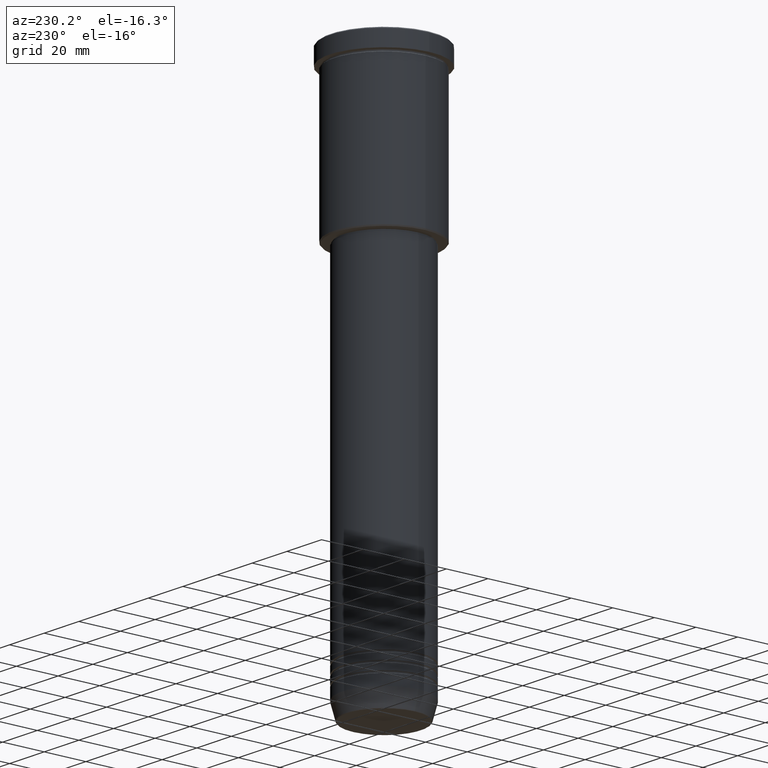
[diagram: clean part render]
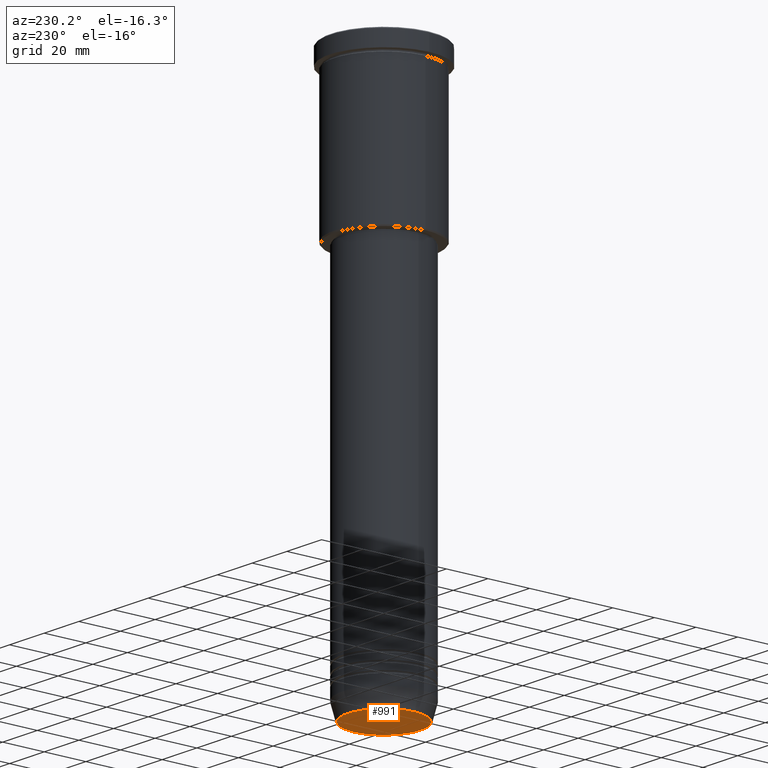
[diagram: same view with one face highlighted and labeled with its STEP entity id]
A machine part, auxiliary view. The second image highlights one B-rep face of the part: STEP entity #991.
In plain terms, the highlighted planar face has unit normal (0, -0, 1).
Its self-contained STEP definition (entity closure, byte-faithful):
#76 = DIRECTION ( 'NONE',  ( 1.000000000000000000, 0.000000000000000000, 0.000000000000000000 ) ) ;
#83 = PLANE ( 'NONE',  #944 ) ;
#180 = DIRECTION ( 'NONE',  ( 0.000000000000000000, 0.000000000000000000, -1.000000000000000000 ) ) ;
#264 = DIRECTION ( 'NONE',  ( 1.000000000000000000, 0.000000000000000000, 0.000000000000000000 ) ) ;
#316 = CARTESIAN_POINT ( 'NONE',  ( 17.47274296656153680, 0.000000000000000000, -260.0000000000000000 ) ) ;
#394 = EDGE_CURVE ( 'NONE', #908, #820, #1160, .T. ) ;
#408 = DIRECTION ( 'NONE',  ( 1.000000000000000000, 0.000000000000000000, 0.000000000000000000 ) ) ;
#435 = DIRECTION ( 'NONE',  ( 0.000000000000000000, -0.000000000000000000, 1.000000000000000000 ) ) ;
#505 = CARTESIAN_POINT ( 'NONE',  ( -17.47274296656153680, 2.169366823916868503E-15, -260.0000000000000000 ) ) ;
#518 = CARTESIAN_POINT ( 'NONE',  ( 0.000000000000000000, 0.000000000000000000, -260.0000000000000000 ) ) ;
#631 = ORIENTED_EDGE ( 'NONE', *, *, #394, .T. ) ;
#636 = ORIENTED_EDGE ( 'NONE', *, *, #921, .T. ) ;
#805 = FACE_OUTER_BOUND ( 'NONE', #915, .T. ) ;
#810 = AXIS2_PLACEMENT_3D ( 'NONE', #518, #180, #76 ) ;
#820 = VERTEX_POINT ( 'NONE', #316 ) ;
#873 = DIRECTION ( 'NONE',  ( 0.000000000000000000, 0.000000000000000000, -1.000000000000000000 ) ) ;
#908 = VERTEX_POINT ( 'NONE', #505 ) ;
#915 = EDGE_LOOP ( 'NONE', ( #636, #631 ) ) ;
#921 = EDGE_CURVE ( 'NONE', #820, #908, #1084, .T. ) ;
#924 = AXIS2_PLACEMENT_3D ( 'NONE', #1080, #873, #408 ) ;
#944 = AXIS2_PLACEMENT_3D ( 'NONE', #1086, #435, #264 ) ;
#991 = ADVANCED_FACE ( 'NONE', ( #805 ), #83, .F. ) ;
#1080 = CARTESIAN_POINT ( 'NONE',  ( 0.000000000000000000, 0.000000000000000000, -260.0000000000000000 ) ) ;
#1084 = CIRCLE ( 'NONE', #924, 17.47274296656153680 ) ;
#1086 = CARTESIAN_POINT ( 'NONE',  ( 0.000000000000000000, 0.000000000000000000, -260.0000000000000000 ) ) ;
#1160 = CIRCLE ( 'NONE', #810, 17.47274296656153680 ) ;